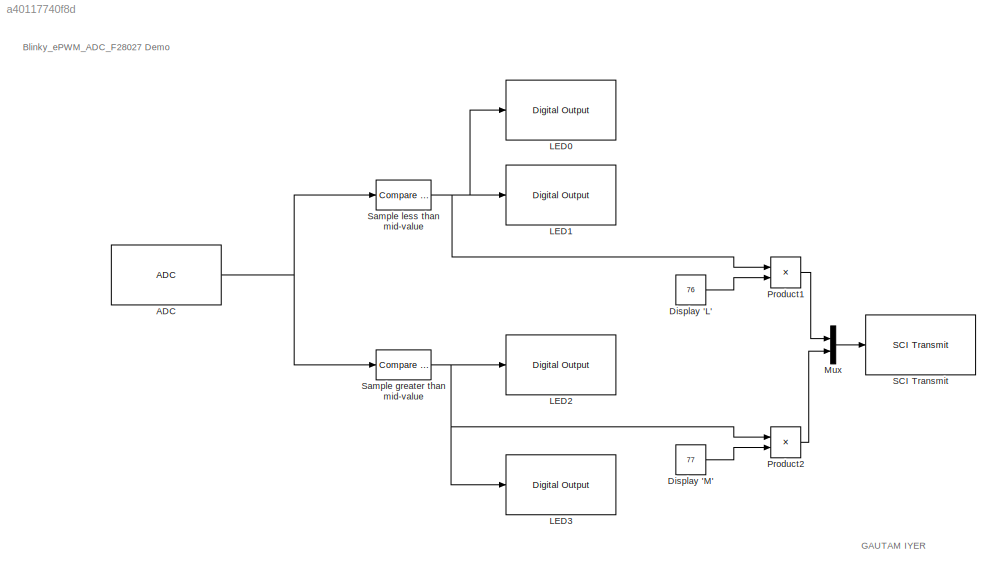
MODEL slx_a40117740f8d
KIND model
CONFIG AbsTol = auto
CONFIG EnableMultiTasking = on
CONFIG FixedStep = auto
CONFIG MaxStep = auto
CONFIG MinStep = auto
CONFIG RelTol = 1e-3
CONFIG SampleTimeConstraint = Unconstrained
CONFIG Solver = FixedStepDiscrete
CONFIG SolverName = FixedStepDiscrete
CONFIG StartTime = 0.0
CONFIG StopTime = 10.0
BLOCK [Reference] ADC  REF=c2802xlib/ADC
  Ports = [0, 1]
  SourceBlock = c2802xlib/ADC
  SourceType = C2802x/03x/05x/06x/M3x/37x/07x ADC
  UserDataPersistent = on
BLOCK [Constant] Display 'L'
  OutDataTypeStr = uint32
  SampleTime = 0.5
  Value = 76
BLOCK [Constant] Display 'M'
  OutDataTypeStr = uint32
  SampleTime = 0.5
  Value = 77
BLOCK [Reference] LED0  REF=c2802xlib/Digital Output
  Ports = [1]
  SourceBlock = c2802xlib/Digital Output
  SourceType = C2802x GPIO Digital Output
  UserDataPersistent = on
BLOCK [Reference] LED1  REF=c2802xlib/Digital Output
  Ports = [1]
  SourceBlock = c2802xlib/Digital Output
  SourceType = C2802x GPIO Digital Output
  UserDataPersistent = on
BLOCK [Reference] LED2  REF=c2802xlib/Digital Output
  Ports = [1]
  SourceBlock = c2802xlib/Digital Output
  SourceType = C2802x GPIO Digital Output
  UserDataPersistent = on
BLOCK [Reference] LED3  REF=c2802xlib/Digital Output
  Ports = [1]
  SourceBlock = c2802xlib/Digital Output
  SourceType = C2802x GPIO Digital Output
  UserDataPersistent = on
BLOCK [Mux] Mux
  DisplayOption = bar
  Inputs = 2
  Ports = [2, 1]
BLOCK [Product] Product1
  InputSameDT = off
  OutDataTypeStr = uint32
  Ports = [2, 1]
  RndMeth = Floor
  SaturateOnIntegerOverflow = off
BLOCK [Product] Product2
  InputSameDT = off
  OutDataTypeStr = uint32
  Ports = [2, 1]
  RndMeth = Floor
  SaturateOnIntegerOverflow = off
BLOCK [Reference] SCI Transmit  REF=c280xlib/SCI Transmit
  Ports = [1]
  SourceBlock = c280xlib/SCI Transmit
  SourceType = C28x SCI Transmit
BLOCK [Reference] Sample greater than mid-value  REF=simulink/Logic and Bit
Operations/Compare
To Constant
  Ports = [1, 1]
  SourceBlock = simulink/Logic and Bit\nOperations/Compare\nTo Constant
  SourceType = Compare To Constant
BLOCK [Reference] Sample less than mid-value  REF=simulink/Logic and Bit
Operations/Compare
To Constant
  Ports = [1, 1]
  SourceBlock = simulink/Logic and Bit\nOperations/Compare\nTo Constant
  SourceType = Compare To Constant
ANNOTATION (root): GAUTAM IYER
ANNOTATION (root): Blinky_ePWM_ADC_F28027 Demo
NET ADC:1 -> Sample greater than mid-value:1, Sample less than mid-value:1
LINE Display 'L':1 -> Product1:2
LINE Display 'M':1 -> Product2:2
LINE Mux:1 -> SCI Transmit:1
LINE Product1:1 -> Mux:1
LINE Product2:1 -> Mux:2
NET Sample greater than mid-value:1 -> LED2:1, LED3:1, Product2:1
NET Sample less than mid-value:1 -> LED0:1, LED1:1, Product1:1
note: NET lines group one-source signal fan-out (src -> all destinations, sorted); 1:1 wires keep LINE
